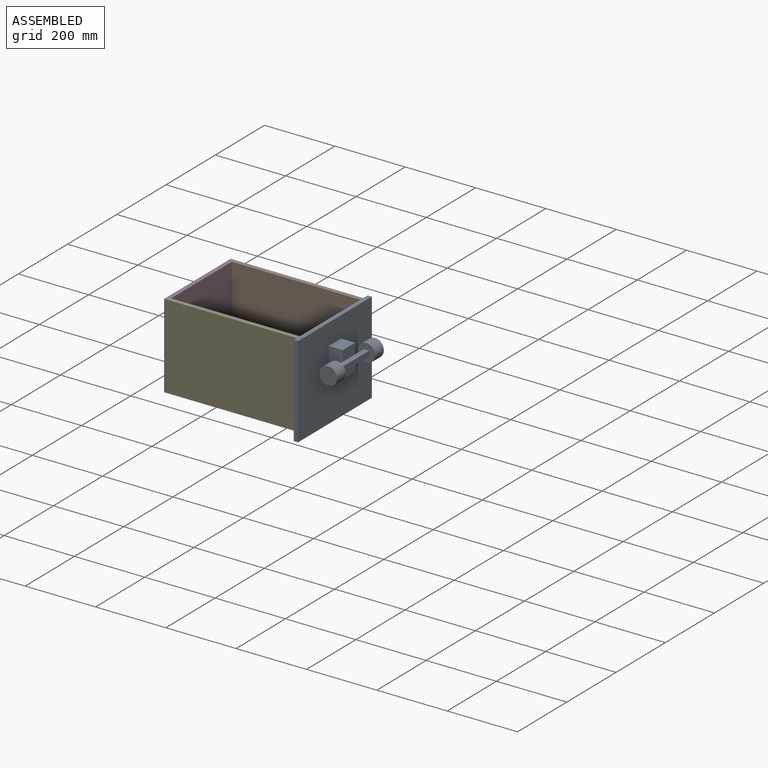
[diagram: assembled view]
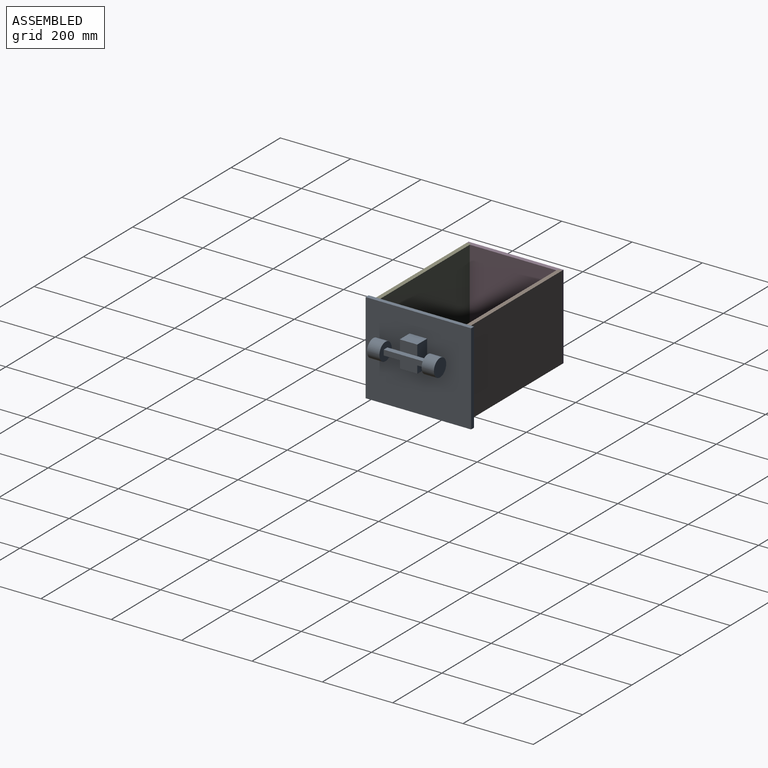
[diagram: assembled view, second angle]
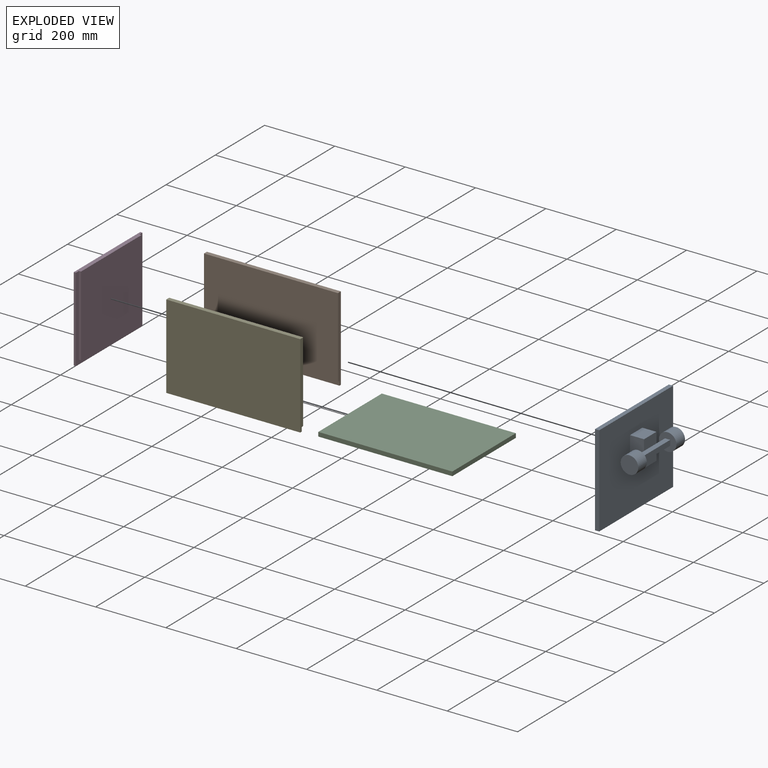
[diagram: exploded view]
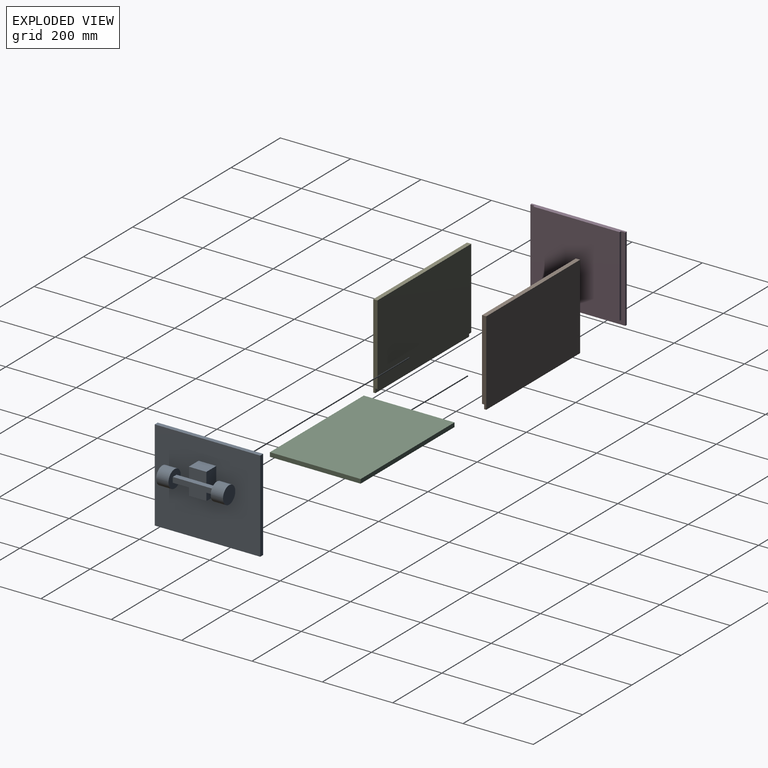
[diagram: exploded view, second angle]
ASSEMBLY  parts=5 mates=4
PART A: 32 faces, bbox 300x84.5x260 mm
  f0: plane 50x30mm, normal (0,1,0), area 1500mm2, adj f16,f18,f19,f22
  f1: plane 300x260mm, normal (0,1,0), area 74250mm2, adj f2,f3,f4,f5,f16,f17,f18,f19
  f2: plane 300x12mm, normal (0,0,1), area 3600mm2, adj f1,f3,f5,f6
  f3: plane 260x12mm, normal (-1,0,0), area 3120mm2, adj f1,f2,f4,f6
  f4: plane 300x12mm, normal (0,0,-1), area 3600mm2, adj f1,f3,f5,f6
  f5: plane 260x12mm, normal (1,0,0), area 3120mm2, adj f1,f2,f4,f6
  f6: plane 300x260mm, normal (0,-1,0), area 68123.2mm2, adj f2,f3,f4,f5,f7,f8,f9,f10
  f7: plane 240x6mm, normal (1,0,0), area 1440mm2, adj f6,f8,f14,f15
  f8: plane 270x6mm, normal (0,0,1), area 1620mm2, adj f6,f7,f9,f15
  f9: plane 240x6mm, normal (-1,0,0), area 1440mm2, adj f6,f8,f10,f15
  f10: plane 17.11x6mm, normal (0,0,-1), area 102.7mm2, adj f6,f9,f11,f15
  f11: plane 228x6mm, normal (1,0,0), area 1368mm2, adj f6,f10,f12,f15
  f12: plane 240.89x6mm, normal (0,0,-1), area 1445.3mm2, adj f6,f11,f13,f15
  f13: plane 228x6mm, normal (-1,0,0), area 1368mm2, adj f6,f12,f14,f15
  f14: plane 12x6mm, normal (0,0,-1), area 72mm2, adj f6,f7,f13,f15
  f15: plane 270x240mm, normal (0,-1,0), area 9876.8mm2, adj f7,f8,f9,f10,f11,f12,f13,f14
  f16: plane 75x40mm, normal (1,0,0), area 3000mm2, adj f0,f1,f17,f19,f20,f21
  f17: plane 50x40mm, normal (0,0,-1), area 2000mm2, adj f1,f16,f18,f20
  f18: plane 75x40mm, normal (-1,0,0), area 3000mm2, adj f0,f1,f17,f19,f20,f25
  f19: plane 50x40mm, normal (0,0,1), area 2000mm2, adj f0,f1,f16,f18
  f20: plane 50x30mm, normal (0,1,0), area 1500mm2, adj f16,f17,f18,f23
  f21: plane 35x15mm, normal (0,-1,0), area 525mm2, adj f16,f22,f23,f28
  f22: plane 120x15mm, normal (0,0,1), area 1800mm2, adj f0,f21,f24,f25,f28,f29
  f23: plane 120x15mm, normal (0,0,-1), area 1800mm2, adj f20,f21,f24,f25,f28,f29
  f24: plane 120x15mm, normal (0,1,0), area 1800mm2, adj f22,f23,f28,f29
  f25: plane 35x15mm, normal (0,-1,0), area 525mm2, adj f18,f22,f23,f29
  f26: cylinder r=25mm len=50mm, axis (-1,0,0), area 5497.8mm2, adj f27,f28
  f27: plane 50x50mm, normal (1,0,0), area 1963.5mm2, adj f26
  f28: plane 50x50mm, normal (-1,0,0), area 1738.5mm2, adj f21,f22,f23,f24,f26
  f29: plane 50x50mm, normal (1,0,0), area 1738.5mm2, adj f22,f23,f24,f25,f30
  f30: cylinder r=25mm len=50mm, axis (1,0,0), area 5497.8mm2, adj f29,f31
  f31: plane 50x50mm, normal (-1,0,0), area 1963.5mm2, adj f30
PART B: 8 faces, bbox 381x12x240 mm
  f0: plane 381x6mm, normal (0,0,-1), area 2286mm2, adj f1,f4,f5,f7
  f1: plane 240x12mm, normal (1,0,0), area 2808mm2, adj f0,f2,f3,f5,f6,f7
  f2: plane 381x228mm, normal (0,-1,0), area 86868mm2, adj f1,f3,f4,f6
  f3: plane 381x12mm, normal (0,0,1), area 4572mm2, adj f1,f2,f4,f5
  f4: plane 240x12mm, normal (-1,0,0), area 2808mm2, adj f0,f2,f3,f5,f6,f7
  f5: plane 381x240mm, normal (0,1,0), area 91440mm2, adj f0,f1,f3,f4
  f6: plane 381x6mm, normal (0,0,-1), area 2286mm2, adj f1,f2,f4,f7
  f7: plane 381x12mm, normal (0,-1,0), area 4572mm2, adj f0,f1,f4,f6
PART C: 6 faces, bbox 258x381x12 mm
  f0: plane 258x12mm, normal (0,1,0), area 3096mm2, adj f1,f3,f4,f5
  f1: plane 381x12mm, normal (-1,0,0), area 4572mm2, adj f0,f2,f4,f5
  f2: plane 258x12mm, normal (0,-1,0), area 3096mm2, adj f1,f3,f4,f5
  f3: plane 381x12mm, normal (1,0,0), area 4572mm2, adj f0,f2,f4,f5
  f4: plane 381x258mm, normal (0,0,1), area 98298mm2, adj f0,f1,f2,f3
  f5: plane 381x258mm, normal (0,0,-1), area 98298mm2, adj f0,f1,f2,f3
PART D: 10 faces, bbox 270x12x240 mm
  f0: plane 270x6mm, normal (0,0,1), area 1620mm2, adj f1,f3,f5,f8
  f1: plane 240x6mm, normal (-1,0,0), area 1440mm2, adj f0,f2,f5,f8
  f2: plane 270x12mm, normal (0,0,-1), area 3096mm2, adj f1,f3,f4,f5,f6,f7,f8
  f3: plane 240x6mm, normal (1,0,0), area 1440mm2, adj f0,f2,f5,f8
  f4: plane 246x228mm, normal (0,-1,0), area 56088mm2, adj f2,f6,f7,f9
  f5: plane 270x240mm, normal (0,1,0), area 64800mm2, adj f0,f1,f2,f3
  f6: plane 228x6mm, normal (1,0,0), area 1368mm2, adj f2,f4,f8,f9
  f7: plane 228x6mm, normal (-1,0,0), area 1368mm2, adj f2,f4,f8,f9
  f8: plane 270x240mm, normal (0,-1,0), area 8712mm2, adj f0,f1,f2,f3,f6,f7,f9
  f9: plane 246x6mm, normal (0,0,1), area 1476mm2, adj f4,f6,f7,f8
PART E: 8 faces, bbox 381x12x240 mm
  f0: plane 240x12mm, normal (1,0,0), area 2808mm2, adj f1,f3,f4,f5,f6,f7
  f1: plane 381x12mm, normal (0,0,1), area 4572mm2, adj f0,f2,f4,f5
  f2: plane 240x12mm, normal (-1,0,0), area 2808mm2, adj f1,f3,f4,f5,f6,f7
  f3: plane 381x6mm, normal (0,0,-1), area 2286mm2, adj f0,f2,f4,f7
  f4: plane 381x240mm, normal (0,-1,0), area 91440mm2, adj f0,f1,f2,f3
  f5: plane 381x228mm, normal (0,1,0), area 86868mm2, adj f0,f1,f2,f6
  f6: plane 381x6mm, normal (0,0,-1), area 2286mm2, adj f0,f2,f5,f7
  f7: plane 381x12mm, normal (0,1,0), area 4572mm2, adj f0,f2,f3,f6
PLACE A rot(axis=(0,0,-1),90deg) t=(277.59,-180.07,-231.6)mm
PLACE B t=(221.98,84.71,-191.86)mm
PLACE C rot(axis=(0,0,1),90deg) t=(215.1,86.44,-243.6)mm
PLACE D rot(axis=(0.71,-0.71,0),180deg) t=(-115.41,-152.64,-20.7)mm
PLACE E t=(222.5,-173.29,-215.87)mm
MATE fastened A.f15 <-> C.f2  axis (-1,0,0) through (271.59,-50.29,-231.6)mm
MATE fastened C.f0 <-> D.f8  axis (-1,0,0) through (-109.41,-50.29,-231.6)mm
MATE fastened D.f8 <-> E.f2  axis (1,0,0) through (-109.41,-185.29,-123.6)mm
MATE fastened D.f8 <-> B.f4  axis (1,0,0) through (-109.41,84.71,-123.6)mm
